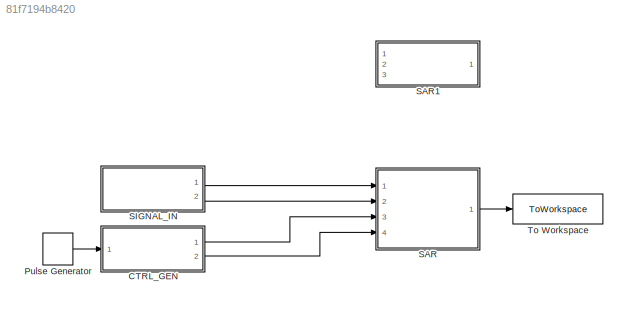
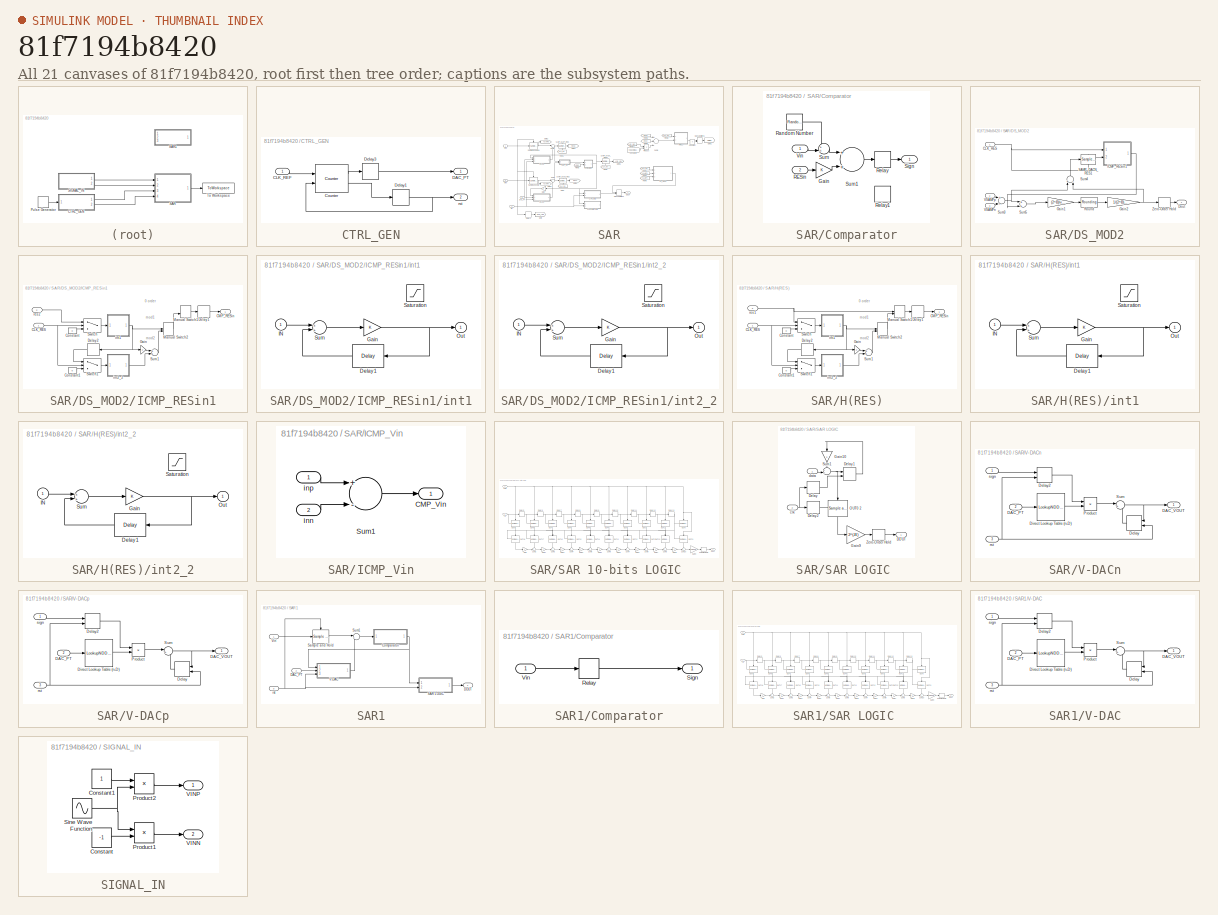
[diagram: thumbnail index - all 21 canvases of the model, root first then tree order]
MODEL slx_81f7194b8420
KIND model
CONFIG AbsTol = auto
CONFIG EnableMultiTasking = off
CONFIG FixedStep = auto
CONFIG MaxStep = auto
CONFIG MinStep = auto
CONFIG RelTol = 1e-3
CONFIG SampleTimeConstraint = Unconstrained
CONFIG Solver = VariableStepAuto
CONFIG SolverName = VariableStepAuto
CONFIG StartTime = 0.0
CONFIG StopTime = 1e-6
BLOCK [SubSystem] CTRL_GEN
  Ports = [1, 2]
  RequestExecContextInheritance = off
BLOCK [Inport] CTRL_GEN/CLK_REF
  IconDisplay = Port number
BLOCK [Reference] CTRL_GEN/Counter  REF=dspswit3/Counter
  Ports = [2, 2]
  SourceBlock = dspswit3/Counter
  SourceProductBaseCode = DS
  SourceProductName = DSP System Toolbox
  SourceType = Counter
BLOCK [Outport] CTRL_GEN/DAC_PT
  IconDisplay = Port number
BLOCK [Delay] CTRL_GEN/Delay1
  DelayLength = 1
  InitialCondition = 0
  InputPortMap = u0
  Ports = [1, 1]
  SampleTime = Tclk
BLOCK [Delay] CTRL_GEN/Delay3
  DelayLength = 1
  InitialCondition = 0
  InputPortMap = u0
  Ports = [1, 1]
  SampleTime = Tclk
BLOCK [Outport] CTRL_GEN/rst
  IconDisplay = Port number
  Port = 2
BLOCK [DiscretePulseGenerator] Pulse Generator
  Amplitude = vfs
  Period = Tclk
  PhaseDelay = Tclk/2
  Ports = [0, 1]
  PulseType = Time based
  PulseWidth = 50
BLOCK [SubSystem] SAR
  Ports = [4, 1]
  RequestExecContextInheritance = off
BLOCK [SubSystem] SAR/Comparator
  Ports = [2, 1]
  RequestExecContextInheritance = off
BLOCK [Gain] SAR/Comparator/Gain
  OutDataTypeStr = Inherit: Inherit via internal rule
  ParamDataTypeStr = Inherit: Inherit via internal rule
  SaturateOnIntegerOverflow = off
BLOCK [Inport] SAR/Comparator/RESin
  IconDisplay = Port number
  Port = 2
BLOCK [RandomNumber] SAR/Comparator/Random Number
  Commented = on
  Mean = cmp_Voff
  SampleTime = 0.1
  Seed = cmp_randn_seed
  Variance = cmp_Var
BLOCK [Relay] SAR/Comparator/Relay
  OffOutputValue = -1
BLOCK [Relay] SAR/Comparator/Relay1
  Commented = on
  OffOutputValue = -1
BLOCK [Outport] SAR/Comparator/Sign
  IconDisplay = Port number
BLOCK [Sum] SAR/Comparator/Sum
  IconShape = round
  InputSameDT = off
  Inputs = ++|
  OutDataTypeStr = Inherit: Inherit via internal rule
  Ports = [2, 1]
  SaturateOnIntegerOverflow = off
BLOCK [Sum] SAR/Comparator/Sum1
  InputSameDT = off
  OutDataTypeStr = Inherit: Inherit via internal rule
  Ports = [2, 1]
  SaturateOnIntegerOverflow = off
BLOCK [Inport] SAR/Comparator/Vin
  IconDisplay = Port number
BLOCK [Constant] SAR/Constant
  Value = 0
BLOCK [Constant] SAR/Constant2
  Value = vdacp(B-1)/2*2
BLOCK [Inport] SAR/DAC_PT
  IconDisplay = Port number
  Port = 3
BLOCK [Outport] SAR/DOUT
  IconDisplay = Port number
BLOCK [SubSystem] SAR/DS_MOD2
  Commented = on
  Ports = [3, 1]
  RequestExecContextInheritance = off
BLOCK [Inport] SAR/DS_MOD2/CLK_RES
  IconDisplay = Port number
BLOCK [Outport] SAR/DS_MOD2/Dout
  IconDisplay = Port number
BLOCK [Gain] SAR/DS_MOD2/Gain1
  Gain = (2^B)/vfs/2
  OutDataTypeStr = Inherit: Inherit via internal rule
  ParamDataTypeStr = Inherit: Inherit via internal rule
  SaturateOnIntegerOverflow = off
BLOCK [Gain] SAR/DS_MOD2/Gain2
  Gain = 1/(2^B)*vfs*2
  OutDataTypeStr = Inherit: Inherit via internal rule
  ParamDataTypeStr = Inherit: Inherit via internal rule
  SaturateOnIntegerOverflow = off
BLOCK [SubSystem] SAR/DS_MOD2/ICMP_RESin1
  Ports = [2, 1]
  RequestExecContextInheritance = off
BLOCK [Inport] SAR/DS_MOD2/ICMP_RESin1/CLK_RES
  IconDisplay = Port number
BLOCK [Outport] SAR/DS_MOD2/ICMP_RESin1/CMP_RESin
  IconDisplay = Port number
BLOCK [Constant] SAR/DS_MOD2/ICMP_RESin1/Constant
  Value = 0
BLOCK [Constant] SAR/DS_MOD2/ICMP_RESin1/Constant1
  Value = 0
BLOCK [Delay] SAR/DS_MOD2/ICMP_RESin1/Delay1
  DelayLength = 1
  InputPortMap = u0
  Ports = [1, 1]
BLOCK [Delay] SAR/DS_MOD2/ICMP_RESin1/Delay2
  DelayLength = 1
  InputPortMap = u0
  Ports = [1, 1]
BLOCK [Gain] SAR/DS_MOD2/ICMP_RESin1/Gain
  Gain = 2
  OutDataTypeStr = Inherit: Inherit via internal rule
  ParamDataTypeStr = Inherit: Inherit via internal rule
  SaturateOnIntegerOverflow = off
BLOCK [ManualSwitch] SAR/DS_MOD2/ICMP_RESin1/Manual Switch1
  CurrentSetting = 0
BLOCK [ManualSwitch] SAR/DS_MOD2/ICMP_RESin1/Manual Switch2
  CurrentSetting = 0
BLOCK [Sum] SAR/DS_MOD2/ICMP_RESin1/Sum1
  InputSameDT = off
  OutDataTypeStr = Inherit: Inherit via internal rule
  Ports = [2, 1]
  SaturateOnIntegerOverflow = off
BLOCK [Switch] SAR/DS_MOD2/ICMP_RESin1/Switch
  Criteria = u2 > Threshold
  InputSameDT = off
  SaturateOnIntegerOverflow = off
BLOCK [Switch] SAR/DS_MOD2/ICMP_RESin1/Switch1
  Criteria = u2 > Threshold
  InputSameDT = off
  SaturateOnIntegerOverflow = off
BLOCK [SubSystem] SAR/DS_MOD2/ICMP_RESin1/int1
  Ports = [1, 1]
  RequestExecContextInheritance = off
BLOCK [Delay] SAR/DS_MOD2/ICMP_RESin1/int1/Delay1
  DelayLength = 1
  InitialCondition = 0
  InputPortMap = u0
  Ports = [1, 1]
  UserDataPersistent = on
BLOCK [Gain] SAR/DS_MOD2/ICMP_RESin1/int1/Gain
  OutDataTypeStr = Inherit: Inherit via internal rule
  ParamDataTypeStr = Inherit: Inherit via internal rule
  SaturateOnIntegerOverflow = off
BLOCK [Inport] SAR/DS_MOD2/ICMP_RESin1/int1/IN
  IconDisplay = Port number
BLOCK [Outport] SAR/DS_MOD2/ICMP_RESin1/int1/Out
  IconDisplay = Port number
  VectorParamsAs1DForOutWhenUnconnected = off
BLOCK [Saturate] SAR/DS_MOD2/ICMP_RESin1/int1/Saturation
  Commented = on
  InputPortMap = u0
  LowerLimit = -1*Amax
  Ports = [1, 1]
  UpperLimit = Amax
BLOCK [Sum] SAR/DS_MOD2/ICMP_RESin1/int1/Sum
  Ports = [2, 1]
BLOCK [SubSystem] SAR/DS_MOD2/ICMP_RESin1/int2_2
  Ports = [1, 1]
  RequestExecContextInheritance = off
BLOCK [Delay] SAR/DS_MOD2/ICMP_RESin1/int2_2/Delay1
  DelayLength = 1
  InitialCondition = 0
  InputPortMap = u0
  Ports = [1, 1]
  UserDataPersistent = on
BLOCK [Gain] SAR/DS_MOD2/ICMP_RESin1/int2_2/Gain
  OutDataTypeStr = Inherit: Inherit via internal rule
  ParamDataTypeStr = Inherit: Inherit via internal rule
  SaturateOnIntegerOverflow = off
BLOCK [Inport] SAR/DS_MOD2/ICMP_RESin1/int2_2/IN
  IconDisplay = Port number
BLOCK [Outport] SAR/DS_MOD2/ICMP_RESin1/int2_2/Out
  IconDisplay = Port number
  VectorParamsAs1DForOutWhenUnconnected = off
BLOCK [Saturate] SAR/DS_MOD2/ICMP_RESin1/int2_2/Saturation
  Commented = on
  InputPortMap = u0
  LowerLimit = -1*Amax
  Ports = [1, 1]
  UpperLimit = Amax
BLOCK [Sum] SAR/DS_MOD2/ICMP_RESin1/int2_2/Sum
  Ports = [2, 1]
BLOCK [Inport] SAR/DS_MOD2/ICMP_RESin1/res2
  IconDisplay = Port number
  Port = 2
BLOCK [Rounding] SAR/DS_MOD2/Round
  Operator = round
BLOCK [Reference] SAR/DS_MOD2/SAMP_DACN_RES1  REF=dspsigops/Sample
and Hold
  Ports = [1, 1, 0, 1]
  SourceBlock = dspsigops/Sample\nand Hold
  SourceProductBaseCode = DS
  SourceProductName = DSP System Toolbox
  SourceType = Sample and Hold
BLOCK [Sum] SAR/DS_MOD2/Sum3
  InputSameDT = off
  Inputs = +-
  OutDataTypeStr = Inherit: Inherit via internal rule
  Ports = [2, 1]
  SaturateOnIntegerOverflow = off
BLOCK [Sum] SAR/DS_MOD2/Sum4
  InputSameDT = off
  Inputs = +-
  OutDataTypeStr = Inherit: Inherit via internal rule
  Ports = [2, 1]
  SaturateOnIntegerOverflow = off
BLOCK [Sum] SAR/DS_MOD2/Sum5
  InputSameDT = off
  OutDataTypeStr = Inherit: Inherit via internal rule
  Ports = [2, 1]
  SaturateOnIntegerOverflow = off
BLOCK [Inport] SAR/DS_MOD2/VSAMPn
  IconDisplay = Port number
  Port = 3
BLOCK [Inport] SAR/DS_MOD2/VSAMPp
  IconDisplay = Port number
  Port = 2
BLOCK [ZeroOrderHold] SAR/DS_MOD2/Zero-Order Hold
  SampleTime = Tnyq
BLOCK [Delay] SAR/Delay2
  DelayLength = B-1
  InputPortMap = u0
  Ports = [1, 1]
BLOCK [From] SAR/From
  GotoTag = CLK_res
BLOCK [From] SAR/From1
  GotoTag = CLK_res
BLOCK [From] SAR/From10
  GotoTag = LSB_sign
BLOCK [From] SAR/From2
  GotoTag = CLK_res
BLOCK [From] SAR/From3
  GotoTag = VRES
BLOCK [From] SAR/From4
  GotoTag = VSAMPp
BLOCK [From] SAR/From5
  GotoTag = CLK_res
BLOCK [From] SAR/From6
  GotoTag = VSAMPn
BLOCK [From] SAR/From7
  GotoTag = CLK_res
BLOCK [From] SAR/From8
  GotoTag = RESp
BLOCK [From] SAR/From9
  GotoTag = RESn
BLOCK [Gain] SAR/Gain
  Gain = -1
  OutDataTypeStr = Inherit: Inherit via internal rule
  ParamDataTypeStr = Inherit: Inherit via internal rule
  SaturateOnIntegerOverflow = off
BLOCK [Goto] SAR/Goto
  GotoTag = CLK_res
BLOCK [Goto] SAR/Goto1
  GotoTag = VRES
BLOCK [Goto] SAR/Goto2
  GotoTag = VSAMPp
BLOCK [Goto] SAR/Goto3
  GotoTag = VSAMPn
BLOCK [Goto] SAR/Goto4
  GotoTag = RESp
BLOCK [Goto] SAR/Goto5
  GotoTag = RESn
BLOCK [Goto] SAR/Goto6
  GotoTag = LSB_sign
BLOCK [SubSystem] SAR/H(RES)
  Ports = [2, 1]
  RequestExecContextInheritance = off
BLOCK [Inport] SAR/H(RES)/CLK_RES
  IconDisplay = Port number
BLOCK [Outport] SAR/H(RES)/CMP_RESin
  IconDisplay = Port number
BLOCK [Constant] SAR/H(RES)/Constant
  Value = 0
BLOCK [Constant] SAR/H(RES)/Constant1
  Value = 0
BLOCK [Delay] SAR/H(RES)/Delay1
  DelayLength = 1
  InputPortMap = u0
  Ports = [1, 1]
BLOCK [Delay] SAR/H(RES)/Delay2
  DelayLength = 1
  InputPortMap = u0
  Ports = [1, 1]
BLOCK [Gain] SAR/H(RES)/Gain
  Gain = 2
  OutDataTypeStr = Inherit: Inherit via internal rule
  ParamDataTypeStr = Inherit: Inherit via internal rule
  SaturateOnIntegerOverflow = off
BLOCK [ManualSwitch] SAR/H(RES)/Manual Switch1
  CurrentSetting = 0
BLOCK [ManualSwitch] SAR/H(RES)/Manual Switch2
  CurrentSetting = 0
BLOCK [Sum] SAR/H(RES)/Sum1
  InputSameDT = off
  OutDataTypeStr = Inherit: Inherit via internal rule
  Ports = [2, 1]
  SaturateOnIntegerOverflow = off
BLOCK [Switch] SAR/H(RES)/Switch
  Criteria = u2 > Threshold
  InputSameDT = off
  SaturateOnIntegerOverflow = off
BLOCK [Switch] SAR/H(RES)/Switch1
  Criteria = u2 > Threshold
  InputSameDT = off
  SaturateOnIntegerOverflow = off
BLOCK [SubSystem] SAR/H(RES)/int1
  Ports = [1, 1]
  RequestExecContextInheritance = off
BLOCK [Delay] SAR/H(RES)/int1/Delay1
  DelayLength = 1
  InitialCondition = 0
  InputPortMap = u0
  Ports = [1, 1]
  UserDataPersistent = on
BLOCK [Gain] SAR/H(RES)/int1/Gain
  OutDataTypeStr = Inherit: Inherit via internal rule
  ParamDataTypeStr = Inherit: Inherit via internal rule
  SaturateOnIntegerOverflow = off
BLOCK [Inport] SAR/H(RES)/int1/IN
  IconDisplay = Port number
BLOCK [Outport] SAR/H(RES)/int1/Out
  IconDisplay = Port number
  VectorParamsAs1DForOutWhenUnconnected = off
BLOCK [Saturate] SAR/H(RES)/int1/Saturation
  Commented = on
  InputPortMap = u0
  LowerLimit = -1*Amax
  Ports = [1, 1]
  UpperLimit = Amax
BLOCK [Sum] SAR/H(RES)/int1/Sum
  Ports = [2, 1]
BLOCK [SubSystem] SAR/H(RES)/int2_2
  Ports = [1, 1]
  RequestExecContextInheritance = off
BLOCK [Delay] SAR/H(RES)/int2_2/Delay1
  DelayLength = 1
  InitialCondition = 0
  InputPortMap = u0
  Ports = [1, 1]
  UserDataPersistent = on
BLOCK [Gain] SAR/H(RES)/int2_2/Gain
  OutDataTypeStr = Inherit: Inherit via internal rule
  ParamDataTypeStr = Inherit: Inherit via internal rule
  SaturateOnIntegerOverflow = off
BLOCK [Inport] SAR/H(RES)/int2_2/IN
  IconDisplay = Port number
BLOCK [Outport] SAR/H(RES)/int2_2/Out
  IconDisplay = Port number
  VectorParamsAs1DForOutWhenUnconnected = off
BLOCK [Saturate] SAR/H(RES)/int2_2/Saturation
  Commented = on
  InputPortMap = u0
  LowerLimit = -1*Amax
  Ports = [1, 1]
  UpperLimit = Amax
BLOCK [Sum] SAR/H(RES)/int2_2/Sum
  Ports = [2, 1]
BLOCK [Inport] SAR/H(RES)/res1
  IconDisplay = Port number
  Port = 2
BLOCK [SubSystem] SAR/ICMP_Vin
  Ports = [2, 1]
  RequestExecContextInheritance = off
BLOCK [Outport] SAR/ICMP_Vin/CMP_Vin
  IconDisplay = Port number
BLOCK [Sum] SAR/ICMP_Vin/Sum1
  InputSameDT = off
  Inputs = +-
  OutDataTypeStr = Inherit: Inherit via internal rule
  Ports = [2, 1]
  SaturateOnIntegerOverflow = off
BLOCK [Inport] SAR/ICMP_Vin/inn
  IconDisplay = Port number
  Port = 2
BLOCK [Inport] SAR/ICMP_Vin/inp
  IconDisplay = Port number
BLOCK [ManualSwitch] SAR/Manual Switch1
BLOCK [ManualSwitch] SAR/Manual Switch2
  CurrentSetting = 0
BLOCK [Product] SAR/Product
  InputSameDT = off
  OutDataTypeStr = Inherit: Inherit via internal rule
  Ports = [2, 1]
  RndMeth = Floor
  SaturateOnIntegerOverflow = off
BLOCK [Reference] SAR/SAMP_DACN_RES  REF=dspsigops/Sample
and Hold
  Ports = [1, 1, 0, 1]
  SourceBlock = dspsigops/Sample\nand Hold
  SourceProductBaseCode = DS
  SourceProductName = DSP System Toolbox
  SourceType = Sample and Hold
BLOCK [Reference] SAR/SAMP_DACN_RES2  REF=dspsigops/Sample
and Hold
  Ports = [1, 1, 0, 1]
  SourceBlock = dspsigops/Sample\nand Hold
  SourceProductBaseCode = DS
  SourceProductName = DSP System Toolbox
  SourceType = Sample and Hold
BLOCK [Reference] SAR/SAMP_DACP_RES  REF=dspsigops/Sample
and Hold
  Ports = [1, 1, 0, 1]
  SourceBlock = dspsigops/Sample\nand Hold
  SourceProductBaseCode = DS
  SourceProductName = DSP System Toolbox
  SourceType = Sample and Hold
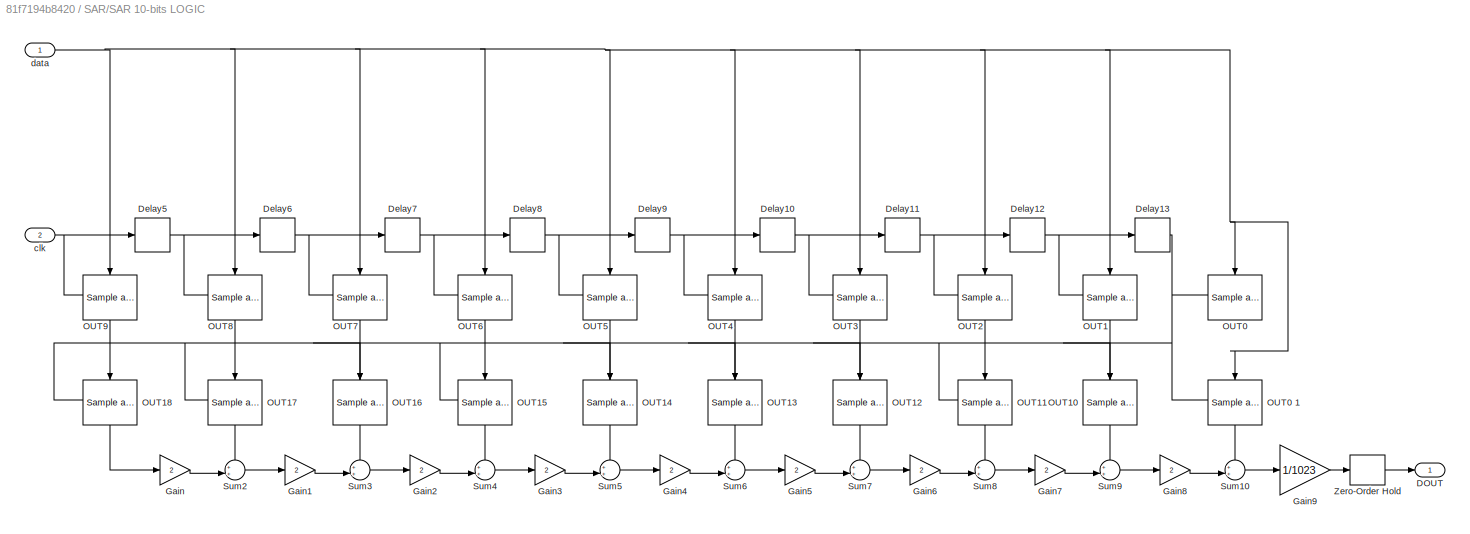
BLOCK [SubSystem] SAR/SAR 10-bits LOGIC 
  Commented = on
  Ports = [2, 1]
  RequestExecContextInheritance = off
BLOCK [Outport] SAR/SAR 10-bits LOGIC /DOUT
  IconDisplay = Port number
BLOCK [Delay] SAR/SAR 10-bits LOGIC /Delay10
  DelayLength = 1
  InitialCondition = 0
  InputPortMap = u0
  Ports = [1, 1]
  SampleTime = Tclk
BLOCK [Delay] SAR/SAR 10-bits LOGIC /Delay11
  DelayLength = 1
  InitialCondition = 0
  InputPortMap = u0
  Ports = [1, 1]
  SampleTime = Tclk
BLOCK [Delay] SAR/SAR 10-bits LOGIC /Delay12
  DelayLength = 1
  InitialCondition = 0
  InputPortMap = u0
  Ports = [1, 1]
  SampleTime = Tclk
BLOCK [Delay] SAR/SAR 10-bits LOGIC /Delay13
  DelayLength = 1
  InitialCondition = 0
  InputPortMap = u0
  Ports = [1, 1]
  SampleTime = Tclk
BLOCK [Delay] SAR/SAR 10-bits LOGIC /Delay5
  DelayLength = 1
  InitialCondition = 0
  InputPortMap = u0
  Ports = [1, 1]
  SampleTime = Tclk
BLOCK [Delay] SAR/SAR 10-bits LOGIC /Delay6
  DelayLength = 1
  InitialCondition = 0
  InputPortMap = u0
  Ports = [1, 1]
  SampleTime = Tclk
BLOCK [Delay] SAR/SAR 10-bits LOGIC /Delay7
  DelayLength = 1
  InitialCondition = 0
  InputPortMap = u0
  Ports = [1, 1]
  SampleTime = Tclk
BLOCK [Delay] SAR/SAR 10-bits LOGIC /Delay8
  DelayLength = 1
  InitialCondition = 0
  InputPortMap = u0
  Ports = [1, 1]
  SampleTime = Tclk
BLOCK [Delay] SAR/SAR 10-bits LOGIC /Delay9
  DelayLength = 1
  InitialCondition = 0
  InputPortMap = u0
  Ports = [1, 1]
  SampleTime = Tclk
BLOCK [Gain] SAR/SAR 10-bits LOGIC /Gain
  Gain = 2
  OutDataTypeStr = Inherit: Inherit via internal rule
  ParamDataTypeStr = Inherit: Inherit via internal rule
  SaturateOnIntegerOverflow = off
BLOCK [Gain] SAR/SAR 10-bits LOGIC /Gain1
  Gain = 2
  OutDataTypeStr = Inherit: Inherit via internal rule
  ParamDataTypeStr = Inherit: Inherit via internal rule
  SaturateOnIntegerOverflow = off
BLOCK [Gain] SAR/SAR 10-bits LOGIC /Gain2
  Gain = 2
  OutDataTypeStr = Inherit: Inherit via internal rule
  ParamDataTypeStr = Inherit: Inherit via internal rule
  SaturateOnIntegerOverflow = off
BLOCK [Gain] SAR/SAR 10-bits LOGIC /Gain3
  Gain = 2
  OutDataTypeStr = Inherit: Inherit via internal rule
  ParamDataTypeStr = Inherit: Inherit via internal rule
  SaturateOnIntegerOverflow = off
BLOCK [Gain] SAR/SAR 10-bits LOGIC /Gain4
  Gain = 2
  OutDataTypeStr = Inherit: Inherit via internal rule
  ParamDataTypeStr = Inherit: Inherit via internal rule
  SaturateOnIntegerOverflow = off
BLOCK [Gain] SAR/SAR 10-bits LOGIC /Gain5
  Gain = 2
  OutDataTypeStr = Inherit: Inherit via internal rule
  ParamDataTypeStr = Inherit: Inherit via internal rule
  SaturateOnIntegerOverflow = off
BLOCK [Gain] SAR/SAR 10-bits LOGIC /Gain6
  Gain = 2
  OutDataTypeStr = Inherit: Inherit via internal rule
  ParamDataTypeStr = Inherit: Inherit via internal rule
  SaturateOnIntegerOverflow = off
BLOCK [Gain] SAR/SAR 10-bits LOGIC /Gain7
  Gain = 2
  OutDataTypeStr = Inherit: Inherit via internal rule
  ParamDataTypeStr = Inherit: Inherit via internal rule
  SaturateOnIntegerOverflow = off
BLOCK [Gain] SAR/SAR 10-bits LOGIC /Gain8
  Gain = 2
  OutDataTypeStr = Inherit: Inherit via internal rule
  ParamDataTypeStr = Inherit: Inherit via internal rule
  SaturateOnIntegerOverflow = off
BLOCK [Gain] SAR/SAR 10-bits LOGIC /Gain9
  Gain = 1/1023
  OutDataTypeStr = Inherit: Inherit via internal rule
  ParamDataTypeStr = Inherit: Inherit via internal rule
  SaturateOnIntegerOverflow = off
BLOCK [Reference] SAR/SAR 10-bits LOGIC /OUT0   REF=dspsigops/Sample
and Hold
  Ports = [1, 1, 0, 1]
  SourceBlock = dspsigops/Sample\nand Hold
  SourceProductBaseCode = DS
  SourceProductName = DSP System Toolbox
  SourceType = Sample and Hold
BLOCK [Reference] SAR/SAR 10-bits LOGIC /OUT0 1  REF=dspsigops/Sample
and Hold
  Ports = [1, 1, 0, 1]
  SourceBlock = dspsigops/Sample\nand Hold
  SourceProductBaseCode = DS
  SourceProductName = DSP System Toolbox
  SourceType = Sample and Hold
BLOCK [Reference] SAR/SAR 10-bits LOGIC /OUT1  REF=dspsigops/Sample
and Hold
  Ports = [1, 1, 0, 1]
  SourceBlock = dspsigops/Sample\nand Hold
  SourceProductBaseCode = DS
  SourceProductName = DSP System Toolbox
  SourceType = Sample and Hold
BLOCK [Reference] SAR/SAR 10-bits LOGIC /OUT10  REF=dspsigops/Sample
and Hold
  Ports = [1, 1, 0, 1]
  SourceBlock = dspsigops/Sample\nand Hold
  SourceProductBaseCode = DS
  SourceProductName = DSP System Toolbox
  SourceType = Sample and Hold
BLOCK [Reference] SAR/SAR 10-bits LOGIC /OUT11  REF=dspsigops/Sample
and Hold
  Ports = [1, 1, 0, 1]
  SourceBlock = dspsigops/Sample\nand Hold
  SourceProductBaseCode = DS
  SourceProductName = DSP System Toolbox
  SourceType = Sample and Hold
BLOCK [Reference] SAR/SAR 10-bits LOGIC /OUT12  REF=dspsigops/Sample
and Hold
  Ports = [1, 1, 0, 1]
  SourceBlock = dspsigops/Sample\nand Hold
  SourceProductBaseCode = DS
  SourceProductName = DSP System Toolbox
  SourceType = Sample and Hold
BLOCK [Reference] SAR/SAR 10-bits LOGIC /OUT13  REF=dspsigops/Sample
and Hold
  Ports = [1, 1, 0, 1]
  SourceBlock = dspsigops/Sample\nand Hold
  SourceProductBaseCode = DS
  SourceProductName = DSP System Toolbox
  SourceType = Sample and Hold
BLOCK [Reference] SAR/SAR 10-bits LOGIC /OUT14  REF=dspsigops/Sample
and Hold
  Ports = [1, 1, 0, 1]
  SourceBlock = dspsigops/Sample\nand Hold
  SourceProductBaseCode = DS
  SourceProductName = DSP System Toolbox
  SourceType = Sample and Hold
BLOCK [Reference] SAR/SAR 10-bits LOGIC /OUT15  REF=dspsigops/Sample
and Hold
  Ports = [1, 1, 0, 1]
  SourceBlock = dspsigops/Sample\nand Hold
  SourceProductBaseCode = DS
  SourceProductName = DSP System Toolbox
  SourceType = Sample and Hold
BLOCK [Reference] SAR/SAR 10-bits LOGIC /OUT16  REF=dspsigops/Sample
and Hold
  Ports = [1, 1, 0, 1]
  SourceBlock = dspsigops/Sample\nand Hold
  SourceProductBaseCode = DS
  SourceProductName = DSP System Toolbox
  SourceType = Sample and Hold
BLOCK [Reference] SAR/SAR 10-bits LOGIC /OUT17  REF=dspsigops/Sample
and Hold
  Ports = [1, 1, 0, 1]
  SourceBlock = dspsigops/Sample\nand Hold
  SourceProductBaseCode = DS
  SourceProductName = DSP System Toolbox
  SourceType = Sample and Hold
BLOCK [Reference] SAR/SAR 10-bits LOGIC /OUT18  REF=dspsigops/Sample
and Hold
  Ports = [1, 1, 0, 1]
  SourceBlock = dspsigops/Sample\nand Hold
  SourceProductBaseCode = DS
  SourceProductName = DSP System Toolbox
  SourceType = Sample and Hold
BLOCK [Reference] SAR/SAR 10-bits LOGIC /OUT2  REF=dspsigops/Sample
and Hold
  Ports = [1, 1, 0, 1]
  SourceBlock = dspsigops/Sample\nand Hold
  SourceProductBaseCode = DS
  SourceProductName = DSP System Toolbox
  SourceType = Sample and Hold
BLOCK [Reference] SAR/SAR 10-bits LOGIC /OUT3  REF=dspsigops/Sample
and Hold
  Ports = [1, 1, 0, 1]
  SourceBlock = dspsigops/Sample\nand Hold
  SourceProductBaseCode = DS
  SourceProductName = DSP System Toolbox
  SourceType = Sample and Hold
BLOCK [Reference] SAR/SAR 10-bits LOGIC /OUT4  REF=dspsigops/Sample
and Hold
  Ports = [1, 1, 0, 1]
  SourceBlock = dspsigops/Sample\nand Hold
  SourceProductBaseCode = DS
  SourceProductName = DSP System Toolbox
  SourceType = Sample and Hold
BLOCK [Reference] SAR/SAR 10-bits LOGIC /OUT5  REF=dspsigops/Sample
and Hold
  Ports = [1, 1, 0, 1]
  SourceBlock = dspsigops/Sample\nand Hold
  SourceProductBaseCode = DS
  SourceProductName = DSP System Toolbox
  SourceType = Sample and Hold
BLOCK [Reference] SAR/SAR 10-bits LOGIC /OUT6  REF=dspsigops/Sample
and Hold
  Ports = [1, 1, 0, 1]
  SourceBlock = dspsigops/Sample\nand Hold
  SourceProductBaseCode = DS
  SourceProductName = DSP System Toolbox
  SourceType = Sample and Hold
BLOCK [Reference] SAR/SAR 10-bits LOGIC /OUT7  REF=dspsigops/Sample
and Hold
  Ports = [1, 1, 0, 1]
  SourceBlock = dspsigops/Sample\nand Hold
  SourceProductBaseCode = DS
  SourceProductName = DSP System Toolbox
  SourceType = Sample and Hold
BLOCK [Reference] SAR/SAR 10-bits LOGIC /OUT8  REF=dspsigops/Sample
and Hold
  Ports = [1, 1, 0, 1]
  SourceBlock = dspsigops/Sample\nand Hold
  SourceProductBaseCode = DS
  SourceProductName = DSP System Toolbox
  SourceType = Sample and Hold
BLOCK [Reference] SAR/SAR 10-bits LOGIC /OUT9  REF=dspsigops/Sample
and Hold
  Ports = [1, 1, 0, 1]
  SourceBlock = dspsigops/Sample\nand Hold
  SourceProductBaseCode = DS
  SourceProductName = DSP System Toolbox
  SourceType = Sample and Hold
BLOCK [Sum] SAR/SAR 10-bits LOGIC /Sum10
  IconShape = round
  InputSameDT = off
  Inputs = ++|
  OutDataTypeStr = Inherit: Inherit via internal rule
  Ports = [2, 1]
  SaturateOnIntegerOverflow = off
BLOCK [Sum] SAR/SAR 10-bits LOGIC /Sum2
  IconShape = round
  InputSameDT = off
  Inputs = ++|
  OutDataTypeStr = Inherit: Inherit via internal rule
  Ports = [2, 1]
  SaturateOnIntegerOverflow = off
BLOCK [Sum] SAR/SAR 10-bits LOGIC /Sum3
  IconShape = round
  InputSameDT = off
  Inputs = ++|
  OutDataTypeStr = Inherit: Inherit via internal rule
  Ports = [2, 1]
  SaturateOnIntegerOverflow = off
BLOCK [Sum] SAR/SAR 10-bits LOGIC /Sum4
  IconShape = round
  InputSameDT = off
  Inputs = ++|
  OutDataTypeStr = Inherit: Inherit via internal rule
  Ports = [2, 1]
  SaturateOnIntegerOverflow = off
BLOCK [Sum] SAR/SAR 10-bits LOGIC /Sum5
  IconShape = round
  InputSameDT = off
  Inputs = ++|
  OutDataTypeStr = Inherit: Inherit via internal rule
  Ports = [2, 1]
  SaturateOnIntegerOverflow = off
BLOCK [Sum] SAR/SAR 10-bits LOGIC /Sum6
  IconShape = round
  InputSameDT = off
  Inputs = ++|
  OutDataTypeStr = Inherit: Inherit via internal rule
  Ports = [2, 1]
  SaturateOnIntegerOverflow = off
BLOCK [Sum] SAR/SAR 10-bits LOGIC /Sum7
  IconShape = round
  InputSameDT = off
  Inputs = ++|
  OutDataTypeStr = Inherit: Inherit via internal rule
  Ports = [2, 1]
  SaturateOnIntegerOverflow = off
BLOCK [Sum] SAR/SAR 10-bits LOGIC /Sum8
  IconShape = round
  InputSameDT = off
  Inputs = ++|
  OutDataTypeStr = Inherit: Inherit via internal rule
  Ports = [2, 1]
  SaturateOnIntegerOverflow = off
BLOCK [Sum] SAR/SAR 10-bits LOGIC /Sum9
  IconShape = round
  InputSameDT = off
  Inputs = ++|
  OutDataTypeStr = Inherit: Inherit via internal rule
  Ports = [2, 1]
  SaturateOnIntegerOverflow = off
BLOCK [ZeroOrderHold] SAR/SAR 10-bits LOGIC /Zero-Order Hold
  SampleTime = Tnyq
BLOCK [Inport] SAR/SAR 10-bits LOGIC /clk
  IconDisplay = Port number
  Port = 2
BLOCK [Inport] SAR/SAR 10-bits LOGIC /data
  IconDisplay = Port number
BLOCK [SubSystem] SAR/SAR LOGIC 
  Ports = [2, 1]
  RequestExecContextInheritance = off
BLOCK [Outport] SAR/SAR LOGIC /DOUT
  IconDisplay = Port number
BLOCK [Delay] SAR/SAR LOGIC /Delay
  DelayLength = B
  InputPortMap = u0
  Ports = [1, 1]
BLOCK [Delay] SAR/SAR LOGIC /Delay1
  DelayLength = 1
  ExternalReset = Rising
  InitialCondition = 0
  InputPortMap = u0,r5
  Ports = [2, 1]
  SampleTime = Tclk
BLOCK [Delay] SAR/SAR LOGIC /Delay2
  DelayLength = B-1
  InputPortMap = u0
  Ports = [1, 1]
BLOCK [Gain] SAR/SAR LOGIC /Gain10
  Gain = 2
  OutDataTypeStr = Inherit: Inherit via internal rule
  ParamDataTypeStr = Inherit: Inherit via internal rule
  SaturateOnIntegerOverflow = off
BLOCK [Gain] SAR/SAR LOGIC /Gain9
  Gain = 2^(-B)
  OutDataTypeStr = Inherit: Inherit via internal rule
  ParamDataTypeStr = Inherit: Inherit via internal rule
  SaturateOnIntegerOverflow = off
BLOCK [Reference] SAR/SAR LOGIC /OUT0 2  REF=dspsigops/Sample
and Hold
  Ports = [1, 1, 0, 1]
  SourceBlock = dspsigops/Sample\nand Hold
  SourceProductBaseCode = DS
  SourceProductName = DSP System Toolbox
  SourceType = Sample and Hold
BLOCK [Sum] SAR/SAR LOGIC /Sum1
  IconShape = round
  InputSameDT = off
  Inputs = ++|
  OutDataTypeStr = Inherit: Inherit via internal rule
  Ports = [2, 1]
  SaturateOnIntegerOverflow = off
BLOCK [ZeroOrderHold] SAR/SAR LOGIC /Zero-Order Hold
  SampleTime = Tnyq
BLOCK [Inport] SAR/SAR LOGIC /clk
  IconDisplay = Port number
  Port = 2
BLOCK [Inport] SAR/SAR LOGIC /data
  IconDisplay = Port number
BLOCK [Reference] SAR/Sample and Hold  REF=dspsigops/Sample
and Hold
  Ports = [1, 1, 0, 1]
  SourceBlock = dspsigops/Sample\nand Hold
  SourceProductBaseCode = DS
  SourceProductName = DSP System Toolbox
  SourceType = Sample and Hold
BLOCK [Reference] SAR/Sample and Hold1  REF=dspsigops/Sample
and Hold
  Ports = [1, 1, 0, 1]
  SourceBlock = dspsigops/Sample\nand Hold
  SourceProductBaseCode = DS
  SourceProductName = DSP System Toolbox
  SourceType = Sample and Hold
BLOCK [Sum] SAR/Sum1
  IconShape = round
  InputSameDT = off
  Inputs = |+-
  OutDataTypeStr = Inherit: Inherit via internal rule
  Ports = [2, 1]
  SaturateOnIntegerOverflow = off
BLOCK [Sum] SAR/Sum2
  IconShape = round
  InputSameDT = off
  Inputs = |+-
  OutDataTypeStr = Inherit: Inherit via internal rule
  Ports = [2, 1]
  SaturateOnIntegerOverflow = off
BLOCK [Sum] SAR/Sum6
  InputSameDT = off
  Inputs = +--
  OutDataTypeStr = Inherit: Inherit via internal rule
  Ports = [3, 1]
  SaturateOnIntegerOverflow = off
BLOCK [SubSystem] SAR/V-DACn
  Ports = [3, 1]
  RequestExecContextInheritance = off
BLOCK [Inport] SAR/V-DACn/DAC_PT
  IconDisplay = Port number
  Port = 2
BLOCK [Outport] SAR/V-DACn/DAC_VOUT
  IconDisplay = Port number
BLOCK [Delay] SAR/V-DACn/Delay
  DelayLength = 1
  ExternalReset = Rising
  InitialCondition = 0
  InputPortMap = u0,r5
  Ports = [2, 1]
  SampleTime = Tclk
BLOCK [Delay] SAR/V-DACn/Delay2
  DelayLength = 1
  ExternalReset = Rising
  InitialCondition = 0
  InputPortMap = u0,r5
  Ports = [2, 1]
  SampleTime = Tclk
BLOCK [LookupNDDirect] SAR/V-DACn/Direct Lookup Table (n-D)
  NumberOfTableDimensions = 1
  Ports = [1, 1]
  Table = vdacn
BLOCK [Product] SAR/V-DACn/Product
  InputSameDT = off
  OutDataTypeStr = Inherit: Inherit via internal rule
  Ports = [2, 1]
  RndMeth = Floor
  SaturateOnIntegerOverflow = off
BLOCK [Sum] SAR/V-DACn/Sum
  IconShape = round
  InputSameDT = off
  Inputs = |++
  OutDataTypeStr = Inherit: Inherit via internal rule
  Ports = [2, 1]
  SaturateOnIntegerOverflow = off
BLOCK [Inport] SAR/V-DACn/rst
  IconDisplay = Port number
  Port = 3
BLOCK [Inport] SAR/V-DACn/sign
  IconDisplay = Port number
BLOCK [SubSystem] SAR/V-DACp
  Ports = [3, 1]
  RequestExecContextInheritance = off
BLOCK [Inport] SAR/V-DACp/DAC_PT
  IconDisplay = Port number
  Port = 2
BLOCK [Outport] SAR/V-DACp/DAC_VOUT
  IconDisplay = Port number
BLOCK [Delay] SAR/V-DACp/Delay
  DelayLength = 1
  ExternalReset = Rising
  InitialCondition = 0
  InputPortMap = u0,r5
  Ports = [2, 1]
  SampleTime = Tclk
BLOCK [Delay] SAR/V-DACp/Delay2
  DelayLength = 1
  ExternalReset = Rising
  InitialCondition = 0
  InputPortMap = u0,r5
  Ports = [2, 1]
  SampleTime = Tclk
BLOCK [LookupNDDirect] SAR/V-DACp/Direct Lookup Table (n-D)
  NumberOfTableDimensions = 1
  Ports = [1, 1]
  Table = vdacp
BLOCK [Product] SAR/V-DACp/Product
  InputSameDT = off
  OutDataTypeStr = Inherit: Inherit via internal rule
  Ports = [2, 1]
  RndMeth = Floor
  SaturateOnIntegerOverflow = off
BLOCK [Sum] SAR/V-DACp/Sum
  IconShape = round
  InputSameDT = off
  Inputs = |++
  OutDataTypeStr = Inherit: Inherit via internal rule
  Ports = [2, 1]
  SaturateOnIntegerOverflow = off
BLOCK [Inport] SAR/V-DACp/rst
  IconDisplay = Port number
  Port = 3
BLOCK [Inport] SAR/V-DACp/sign
  IconDisplay = Port number
BLOCK [Inport] SAR/Vinn
  IconDisplay = Port number
  Port = 2
BLOCK [Inport] SAR/Vinp
  IconDisplay = Port number
BLOCK [Inport] SAR/rst
  IconDisplay = Port number
  Port = 4
BLOCK [SubSystem] SAR1
  Commented = on
  Ports = [3, 1]
  RequestExecContextInheritance = off
BLOCK [SubSystem] SAR1/Comparator
  Ports = [1, 1]
  RequestExecContextInheritance = off
BLOCK [Relay] SAR1/Comparator/Relay
  OffOutputValue = -1
BLOCK [Outport] SAR1/Comparator/Sign
  IconDisplay = Port number
BLOCK [Inport] SAR1/Comparator/Vin
  IconDisplay = Port number
BLOCK [Inport] SAR1/DAC_PT
  IconDisplay = Port number
  Port = 2
BLOCK [Outport] SAR1/DOUT
  IconDisplay = Port number
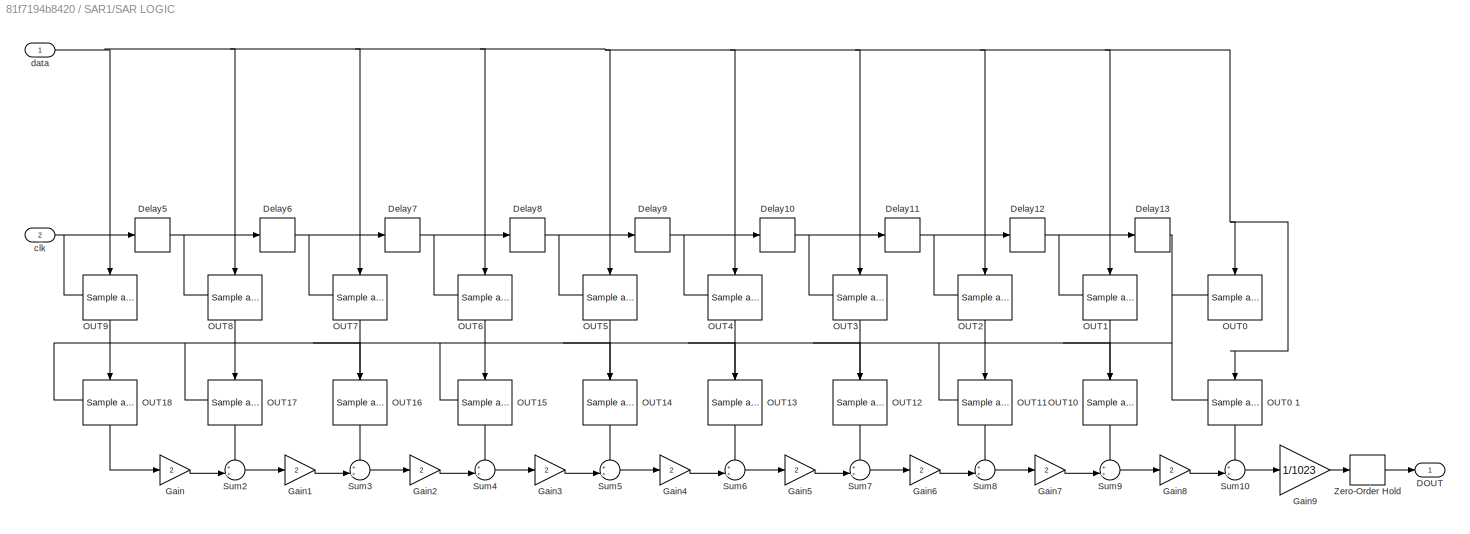
BLOCK [SubSystem] SAR1/SAR LOGIC 
  Ports = [2, 1]
  RequestExecContextInheritance = off
BLOCK [Outport] SAR1/SAR LOGIC /DOUT
  IconDisplay = Port number
BLOCK [Delay] SAR1/SAR LOGIC /Delay10
  DelayLength = 1
  InitialCondition = 0
  InputPortMap = u0
  Ports = [1, 1]
  SampleTime = 1e-9
BLOCK [Delay] SAR1/SAR LOGIC /Delay11
  DelayLength = 1
  InitialCondition = 0
  InputPortMap = u0
  Ports = [1, 1]
  SampleTime = 1e-9
BLOCK [Delay] SAR1/SAR LOGIC /Delay12
  DelayLength = 1
  InitialCondition = 0
  InputPortMap = u0
  Ports = [1, 1]
  SampleTime = 1e-9
BLOCK [Delay] SAR1/SAR LOGIC /Delay13
  DelayLength = 1
  InitialCondition = 0
  InputPortMap = u0
  Ports = [1, 1]
  SampleTime = 1e-9
BLOCK [Delay] SAR1/SAR LOGIC /Delay5
  DelayLength = 1
  InitialCondition = 0
  InputPortMap = u0
  Ports = [1, 1]
  SampleTime = 1e-9
BLOCK [Delay] SAR1/SAR LOGIC /Delay6
  DelayLength = 1
  InitialCondition = 0
  InputPortMap = u0
  Ports = [1, 1]
  SampleTime = 1e-9
BLOCK [Delay] SAR1/SAR LOGIC /Delay7
  DelayLength = 1
  InitialCondition = 0
  InputPortMap = u0
  Ports = [1, 1]
  SampleTime = 1e-9
BLOCK [Delay] SAR1/SAR LOGIC /Delay8
  DelayLength = 1
  InitialCondition = 0
  InputPortMap = u0
  Ports = [1, 1]
  SampleTime = 1e-9
BLOCK [Delay] SAR1/SAR LOGIC /Delay9
  DelayLength = 1
  InitialCondition = 0
  InputPortMap = u0
  Ports = [1, 1]
  SampleTime = 1e-9
BLOCK [Gain] SAR1/SAR LOGIC /Gain
  Gain = 2
  OutDataTypeStr = Inherit: Inherit via internal rule
  ParamDataTypeStr = Inherit: Inherit via internal rule
  SaturateOnIntegerOverflow = off
BLOCK [Gain] SAR1/SAR LOGIC /Gain1
  Gain = 2
  OutDataTypeStr = Inherit: Inherit via internal rule
  ParamDataTypeStr = Inherit: Inherit via internal rule
  SaturateOnIntegerOverflow = off
BLOCK [Gain] SAR1/SAR LOGIC /Gain2
  Gain = 2
  OutDataTypeStr = Inherit: Inherit via internal rule
  ParamDataTypeStr = Inherit: Inherit via internal rule
  SaturateOnIntegerOverflow = off
BLOCK [Gain] SAR1/SAR LOGIC /Gain3
  Gain = 2
  OutDataTypeStr = Inherit: Inherit via internal rule
  ParamDataTypeStr = Inherit: Inherit via internal rule
  SaturateOnIntegerOverflow = off
BLOCK [Gain] SAR1/SAR LOGIC /Gain4
  Gain = 2
  OutDataTypeStr = Inherit: Inherit via internal rule
  ParamDataTypeStr = Inherit: Inherit via internal rule
  SaturateOnIntegerOverflow = off
BLOCK [Gain] SAR1/SAR LOGIC /Gain5
  Gain = 2
  OutDataTypeStr = Inherit: Inherit via internal rule
  ParamDataTypeStr = Inherit: Inherit via internal rule
  SaturateOnIntegerOverflow = off
BLOCK [Gain] SAR1/SAR LOGIC /Gain6
  Gain = 2
  OutDataTypeStr = Inherit: Inherit via internal rule
  ParamDataTypeStr = Inherit: Inherit via internal rule
  SaturateOnIntegerOverflow = off
BLOCK [Gain] SAR1/SAR LOGIC /Gain7
  Gain = 2
  OutDataTypeStr = Inherit: Inherit via internal rule
  ParamDataTypeStr = Inherit: Inherit via internal rule
  SaturateOnIntegerOverflow = off
BLOCK [Gain] SAR1/SAR LOGIC /Gain8
  Gain = 2
  OutDataTypeStr = Inherit: Inherit via internal rule
  ParamDataTypeStr = Inherit: Inherit via internal rule
  SaturateOnIntegerOverflow = off
BLOCK [Gain] SAR1/SAR LOGIC /Gain9
  Gain = 1/1023
  OutDataTypeStr = Inherit: Inherit via internal rule
  ParamDataTypeStr = Inherit: Inherit via internal rule
  SaturateOnIntegerOverflow = off
BLOCK [Reference] SAR1/SAR LOGIC /OUT0   REF=dspsigops/Sample
and Hold
  Ports = [1, 1, 0, 1]
  SourceBlock = dspsigops/Sample\nand Hold
  SourceProductBaseCode = DS
  SourceProductName = DSP System Toolbox
  SourceType = Sample and Hold
BLOCK [Reference] SAR1/SAR LOGIC /OUT0 1  REF=dspsigops/Sample
and Hold
  Ports = [1, 1, 0, 1]
  SourceBlock = dspsigops/Sample\nand Hold
  SourceProductBaseCode = DS
  SourceProductName = DSP System Toolbox
  SourceType = Sample and Hold
BLOCK [Reference] SAR1/SAR LOGIC /OUT1  REF=dspsigops/Sample
and Hold
  Ports = [1, 1, 0, 1]
  SourceBlock = dspsigops/Sample\nand Hold
  SourceProductBaseCode = DS
  SourceProductName = DSP System Toolbox
  SourceType = Sample and Hold
BLOCK [Reference] SAR1/SAR LOGIC /OUT10  REF=dspsigops/Sample
and Hold
  Ports = [1, 1, 0, 1]
  SourceBlock = dspsigops/Sample\nand Hold
  SourceProductBaseCode = DS
  SourceProductName = DSP System Toolbox
  SourceType = Sample and Hold
BLOCK [Reference] SAR1/SAR LOGIC /OUT11  REF=dspsigops/Sample
and Hold
  Ports = [1, 1, 0, 1]
  SourceBlock = dspsigops/Sample\nand Hold
  SourceProductBaseCode = DS
  SourceProductName = DSP System Toolbox
  SourceType = Sample and Hold
BLOCK [Reference] SAR1/SAR LOGIC /OUT12  REF=dspsigops/Sample
and Hold
  Ports = [1, 1, 0, 1]
  SourceBlock = dspsigops/Sample\nand Hold
  SourceProductBaseCode = DS
  SourceProductName = DSP System Toolbox
  SourceType = Sample and Hold
BLOCK [Reference] SAR1/SAR LOGIC /OUT13  REF=dspsigops/Sample
and Hold
  Ports = [1, 1, 0, 1]
  SourceBlock = dspsigops/Sample\nand Hold
  SourceProductBaseCode = DS
  SourceProductName = DSP System Toolbox
  SourceType = Sample and Hold
BLOCK [Reference] SAR1/SAR LOGIC /OUT14  REF=dspsigops/Sample
and Hold
  Ports = [1, 1, 0, 1]
  SourceBlock = dspsigops/Sample\nand Hold
  SourceProductBaseCode = DS
  SourceProductName = DSP System Toolbox
  SourceType = Sample and Hold
BLOCK [Reference] SAR1/SAR LOGIC /OUT15  REF=dspsigops/Sample
and Hold
  Ports = [1, 1, 0, 1]
  SourceBlock = dspsigops/Sample\nand Hold
  SourceProductBaseCode = DS
  SourceProductName = DSP System Toolbox
  SourceType = Sample and Hold
BLOCK [Reference] SAR1/SAR LOGIC /OUT16  REF=dspsigops/Sample
and Hold
  Ports = [1, 1, 0, 1]
  SourceBlock = dspsigops/Sample\nand Hold
  SourceProductBaseCode = DS
  SourceProductName = DSP System Toolbox
  SourceType = Sample and Hold
BLOCK [Reference] SAR1/SAR LOGIC /OUT17  REF=dspsigops/Sample
and Hold
  Ports = [1, 1, 0, 1]
  SourceBlock = dspsigops/Sample\nand Hold
  SourceProductBaseCode = DS
  SourceProductName = DSP System Toolbox
  SourceType = Sample and Hold
BLOCK [Reference] SAR1/SAR LOGIC /OUT18  REF=dspsigops/Sample
and Hold
  Ports = [1, 1, 0, 1]
  SourceBlock = dspsigops/Sample\nand Hold
  SourceProductBaseCode = DS
  SourceProductName = DSP System Toolbox
  SourceType = Sample and Hold
BLOCK [Reference] SAR1/SAR LOGIC /OUT2  REF=dspsigops/Sample
and Hold
  Ports = [1, 1, 0, 1]
  SourceBlock = dspsigops/Sample\nand Hold
  SourceProductBaseCode = DS
  SourceProductName = DSP System Toolbox
  SourceType = Sample and Hold
BLOCK [Reference] SAR1/SAR LOGIC /OUT3  REF=dspsigops/Sample
and Hold
  Ports = [1, 1, 0, 1]
  SourceBlock = dspsigops/Sample\nand Hold
  SourceProductBaseCode = DS
  SourceProductName = DSP System Toolbox
  SourceType = Sample and Hold
BLOCK [Reference] SAR1/SAR LOGIC /OUT4  REF=dspsigops/Sample
and Hold
  Ports = [1, 1, 0, 1]
  SourceBlock = dspsigops/Sample\nand Hold
  SourceProductBaseCode = DS
  SourceProductName = DSP System Toolbox
  SourceType = Sample and Hold
BLOCK [Reference] SAR1/SAR LOGIC /OUT5  REF=dspsigops/Sample
and Hold
  Ports = [1, 1, 0, 1]
  SourceBlock = dspsigops/Sample\nand Hold
  SourceProductBaseCode = DS
  SourceProductName = DSP System Toolbox
  SourceType = Sample and Hold
BLOCK [Reference] SAR1/SAR LOGIC /OUT6  REF=dspsigops/Sample
and Hold
  Ports = [1, 1, 0, 1]
  SourceBlock = dspsigops/Sample\nand Hold
  SourceProductBaseCode = DS
  SourceProductName = DSP System Toolbox
  SourceType = Sample and Hold
BLOCK [Reference] SAR1/SAR LOGIC /OUT7  REF=dspsigops/Sample
and Hold
  Ports = [1, 1, 0, 1]
  SourceBlock = dspsigops/Sample\nand Hold
  SourceProductBaseCode = DS
  SourceProductName = DSP System Toolbox
  SourceType = Sample and Hold
BLOCK [Reference] SAR1/SAR LOGIC /OUT8  REF=dspsigops/Sample
and Hold
  Ports = [1, 1, 0, 1]
  SourceBlock = dspsigops/Sample\nand Hold
  SourceProductBaseCode = DS
  SourceProductName = DSP System Toolbox
  SourceType = Sample and Hold
BLOCK [Reference] SAR1/SAR LOGIC /OUT9  REF=dspsigops/Sample
and Hold
  Ports = [1, 1, 0, 1]
  SourceBlock = dspsigops/Sample\nand Hold
  SourceProductBaseCode = DS
  SourceProductName = DSP System Toolbox
  SourceType = Sample and Hold
BLOCK [Sum] SAR1/SAR LOGIC /Sum10
  IconShape = round
  InputSameDT = off
  Inputs = ++|
  OutDataTypeStr = Inherit: Inherit via internal rule
  Ports = [2, 1]
  SaturateOnIntegerOverflow = off
BLOCK [Sum] SAR1/SAR LOGIC /Sum2
  IconShape = round
  InputSameDT = off
  Inputs = ++|
  OutDataTypeStr = Inherit: Inherit via internal rule
  Ports = [2, 1]
  SaturateOnIntegerOverflow = off
BLOCK [Sum] SAR1/SAR LOGIC /Sum3
  IconShape = round
  InputSameDT = off
  Inputs = ++|
  OutDataTypeStr = Inherit: Inherit via internal rule
  Ports = [2, 1]
  SaturateOnIntegerOverflow = off
BLOCK [Sum] SAR1/SAR LOGIC /Sum4
  IconShape = round
  InputSameDT = off
  Inputs = ++|
  OutDataTypeStr = Inherit: Inherit via internal rule
  Ports = [2, 1]
  SaturateOnIntegerOverflow = off
BLOCK [Sum] SAR1/SAR LOGIC /Sum5
  IconShape = round
  InputSameDT = off
  Inputs = ++|
  OutDataTypeStr = Inherit: Inherit via internal rule
  Ports = [2, 1]
  SaturateOnIntegerOverflow = off
BLOCK [Sum] SAR1/SAR LOGIC /Sum6
  IconShape = round
  InputSameDT = off
  Inputs = ++|
  OutDataTypeStr = Inherit: Inherit via internal rule
  Ports = [2, 1]
  SaturateOnIntegerOverflow = off
BLOCK [Sum] SAR1/SAR LOGIC /Sum7
  IconShape = round
  InputSameDT = off
  Inputs = ++|
  OutDataTypeStr = Inherit: Inherit via internal rule
  Ports = [2, 1]
  SaturateOnIntegerOverflow = off
BLOCK [Sum] SAR1/SAR LOGIC /Sum8
  IconShape = round
  InputSameDT = off
  Inputs = ++|
  OutDataTypeStr = Inherit: Inherit via internal rule
  Ports = [2, 1]
  SaturateOnIntegerOverflow = off
BLOCK [Sum] SAR1/SAR LOGIC /Sum9
  IconShape = round
  InputSameDT = off
  Inputs = ++|
  OutDataTypeStr = Inherit: Inherit via internal rule
  Ports = [2, 1]
  SaturateOnIntegerOverflow = off
BLOCK [ZeroOrderHold] SAR1/SAR LOGIC /Zero-Order Hold
  SampleTime = 1e-9*10
BLOCK [Inport] SAR1/SAR LOGIC /clk
  IconDisplay = Port number
  Port = 2
BLOCK [Inport] SAR1/SAR LOGIC /data
  IconDisplay = Port number
BLOCK [Reference] SAR1/Sample and Hold  REF=dspsigops/Sample
and Hold
  Ports = [1, 1, 0, 1]
  SourceBlock = dspsigops/Sample\nand Hold
  SourceProductBaseCode = DS
  SourceProductName = DSP System Toolbox
  SourceType = Sample and Hold
BLOCK [Sum] SAR1/Sum1
  IconShape = round
  InputSameDT = off
  Inputs = |+-
  OutDataTypeStr = Inherit: Inherit via internal rule
  Ports = [2, 1]
  SaturateOnIntegerOverflow = off
BLOCK [SubSystem] SAR1/V-DAC
  Ports = [3, 1]
  RequestExecContextInheritance = off
BLOCK [Inport] SAR1/V-DAC/DAC_PT
  IconDisplay = Port number
  Port = 2
BLOCK [Outport] SAR1/V-DAC/DAC_VOUT
  IconDisplay = Port number
BLOCK [Delay] SAR1/V-DAC/Delay
  DelayLength = 1
  ExternalReset = Rising
  InitialCondition = 0
  InputPortMap = u0,r5
  Ports = [2, 1]
  SampleTime = 1e-9
BLOCK [Delay] SAR1/V-DAC/Delay2
  DelayLength = 1
  ExternalReset = Rising
  InitialCondition = 0
  InputPortMap = u0,r5
  Ports = [2, 1]
  SampleTime = 1e-9
BLOCK [LookupNDDirect] SAR1/V-DAC/Direct Lookup Table (n-D)
  NumberOfTableDimensions = 1
  Ports = [1, 1]
  Table = vdac
BLOCK [Product] SAR1/V-DAC/Product
  InputSameDT = off
  OutDataTypeStr = Inherit: Inherit via internal rule
  Ports = [2, 1]
  RndMeth = Floor
  SaturateOnIntegerOverflow = off
BLOCK [Sum] SAR1/V-DAC/Sum
  IconShape = round
  InputSameDT = off
  Inputs = |++
  OutDataTypeStr = Inherit: Inherit via internal rule
  Ports = [2, 1]
  SaturateOnIntegerOverflow = off
BLOCK [Inport] SAR1/V-DAC/rst
  IconDisplay = Port number
  Port = 3
BLOCK [Inport] SAR1/V-DAC/sign
  IconDisplay = Port number
BLOCK [Inport] SAR1/Vin
  IconDisplay = Port number
BLOCK [Inport] SAR1/rst
  IconDisplay = Port number
  Port = 3
BLOCK [SubSystem] SIGNAL_IN
  Ports = [0, 2]
  RequestExecContextInheritance = off
BLOCK [Constant] SIGNAL_IN/Constant
  Value = -1
BLOCK [Constant] SIGNAL_IN/Constant1
BLOCK [Product] SIGNAL_IN/Product1
  InputSameDT = off
  OutDataTypeStr = Inherit: Inherit via internal rule
  Ports = [2, 1]
  RndMeth = Floor
  SaturateOnIntegerOverflow = off
BLOCK [Product] SIGNAL_IN/Product2
  InputSameDT = off
  OutDataTypeStr = Inherit: Inherit via internal rule
  Ports = [2, 1]
  RndMeth = Floor
  SaturateOnIntegerOverflow = off
BLOCK [Sin] SIGNAL_IN/Sine Wave Function
  Amplitude = vin_amp
  Frequency = 2*pi*fsig
  Ports = [0, 1]
  SampleTime = 0
BLOCK [Outport] SIGNAL_IN/VINN
  IconDisplay = Port number
  Port = 2
BLOCK [Outport] SIGNAL_IN/VINP
  IconDisplay = Port number
BLOCK [ToWorkspace] To Workspace
  FixptAsFi = on
  MaxDataPoints = inf
  Ports = [1]
  SampleTime = -1
  VariableName = SAR_DOUT
ANNOTATION SAR/DS_MOD2/ICMP_RESin1: 0 order
ANNOTATION SAR/DS_MOD2/ICMP_RESin1: mod1
ANNOTATION SAR/DS_MOD2/ICMP_RESin1: mod2
ANNOTATION SAR/H(RES): 0 order
ANNOTATION SAR/H(RES): mod1
ANNOTATION SAR/H(RES): mod2
LINE CTRL_GEN/CLK_REF:1 -> CTRL_GEN/Counter:1
LINE CTRL_GEN/Counter:1 -> CTRL_GEN/Delay3:1
LINE CTRL_GEN/Counter:2 -> CTRL_GEN/Delay1:1
NET CTRL_GEN/Delay1:1 -> CTRL_GEN/Counter:2, CTRL_GEN/rst:1
LINE CTRL_GEN/Delay3:1 -> CTRL_GEN/DAC_PT:1
LINE CTRL_GEN:1 -> SAR:3
LINE CTRL_GEN:2 -> SAR:4
LINE Pulse Generator:1 -> CTRL_GEN:1
LINE SAR/Comparator/Gain:1 -> SAR/Comparator/Sum1:2
LINE SAR/Comparator/RESin:1 -> SAR/Comparator/Gain:1
LINE SAR/Comparator/Random Number:1 -> SAR/Comparator/Sum:1
LINE SAR/Comparator/Relay:1 -> SAR/Comparator/Sign:1
LINE SAR/Comparator/Sum1:1 -> SAR/Comparator/Relay:1
LINE SAR/Comparator/Sum:1 -> SAR/Comparator/Sum1:1
LINE SAR/Comparator/Vin:1 -> SAR/Comparator/Sum:2
NET SAR/Comparator:1 -> SAR/Gain:1, SAR/SAMP_DACN_RES2:1, SAR/SAR 10-bits LOGIC :1, SAR/SAR LOGIC :1, SAR/V-DACp:1
LINE SAR/Constant2:1 -> SAR/Product:2
LINE SAR/Constant:1 -> SAR/Manual Switch1:2
NET SAR/DAC_PT:1 -> SAR/V-DACn:2, SAR/V-DACp:2
NET SAR/DS_MOD2/CLK_RES:1 -> SAR/DS_MOD2/ICMP_RESin1:1, SAR/DS_MOD2/SAMP_DACN_RES1:trigger
LINE SAR/DS_MOD2/Gain1:1 -> SAR/DS_MOD2/Round:1
NET SAR/DS_MOD2/Gain2:1 -> SAR/DS_MOD2/Sum4:2, SAR/DS_MOD2/Zero-Order Hold:1
NET SAR/DS_MOD2/ICMP_RESin1/CLK_RES:1 -> SAR/DS_MOD2/ICMP_RESin1/Switch1:2, SAR/DS_MOD2/ICMP_RESin1/Switch:2
LINE SAR/DS_MOD2/ICMP_RESin1/Constant1:1 -> SAR/DS_MOD2/ICMP_RESin1/Switch1:3
LINE SAR/DS_MOD2/ICMP_RESin1/Constant:1 -> SAR/DS_MOD2/ICMP_RESin1/Switch:3
LINE SAR/DS_MOD2/ICMP_RESin1/Delay1:1 -> SAR/DS_MOD2/ICMP_RESin1/CMP_RESin:1
LINE SAR/DS_MOD2/ICMP_RESin1/Delay2:1 -> SAR/DS_MOD2/ICMP_RESin1/Switch1:1
LINE SAR/DS_MOD2/ICMP_RESin1/Gain:1 -> SAR/DS_MOD2/ICMP_RESin1/Sum1:1
LINE SAR/DS_MOD2/ICMP_RESin1/Manual Switch1:1 -> SAR/DS_MOD2/ICMP_RESin1/Delay1:1
LINE SAR/DS_MOD2/ICMP_RESin1/Manual Switch2:1 -> SAR/DS_MOD2/ICMP_RESin1/Manual Switch1:2
LINE SAR/DS_MOD2/ICMP_RESin1/Sum1:1 -> SAR/DS_MOD2/ICMP_RESin1/Manual Switch2:2
LINE SAR/DS_MOD2/ICMP_RESin1/Switch1:1 -> SAR/DS_MOD2/ICMP_RESin1/int2_2:1
LINE SAR/DS_MOD2/ICMP_RESin1/Switch:1 -> SAR/DS_MOD2/ICMP_RESin1/int1:1
LINE SAR/DS_MOD2/ICMP_RESin1/int1/Delay1:1 -> SAR/DS_MOD2/ICMP_RESin1/int1/Sum:2
NET SAR/DS_MOD2/ICMP_RESin1/int1/Gain:1 -> SAR/DS_MOD2/ICMP_RESin1/int1/Delay1:1, SAR/DS_MOD2/ICMP_RESin1/int1/Out:1
LINE SAR/DS_MOD2/ICMP_RESin1/int1/IN:1 -> SAR/DS_MOD2/ICMP_RESin1/int1/Sum:1
LINE SAR/DS_MOD2/ICMP_RESin1/int1/Sum:1 -> SAR/DS_MOD2/ICMP_RESin1/int1/Gain:1
NET SAR/DS_MOD2/ICMP_RESin1/int1:1 -> SAR/DS_MOD2/ICMP_RESin1/Delay2:1, SAR/DS_MOD2/ICMP_RESin1/Gain:1, SAR/DS_MOD2/ICMP_RESin1/Manual Switch2:1
LINE SAR/DS_MOD2/ICMP_RESin1/int2_2/Delay1:1 -> SAR/DS_MOD2/ICMP_RESin1/int2_2/Sum:2
NET SAR/DS_MOD2/ICMP_RESin1/int2_2/Gain:1 -> SAR/DS_MOD2/ICMP_RESin1/int2_2/Delay1:1, SAR/DS_MOD2/ICMP_RESin1/int2_2/Out:1
LINE SAR/DS_MOD2/ICMP_RESin1/int2_2/IN:1 -> SAR/DS_MOD2/ICMP_RESin1/int2_2/Sum:1
LINE SAR/DS_MOD2/ICMP_RESin1/int2_2/Sum:1 -> SAR/DS_MOD2/ICMP_RESin1/int2_2/Gain:1
LINE SAR/DS_MOD2/ICMP_RESin1/int2_2:1 -> SAR/DS_MOD2/ICMP_RESin1/Sum1:2
LINE SAR/DS_MOD2/ICMP_RESin1/res2:1 -> SAR/DS_MOD2/ICMP_RESin1/Switch:1
LINE SAR/DS_MOD2/ICMP_RESin1:1 -> SAR/DS_MOD2/Sum5:2
LINE SAR/DS_MOD2/Round:1 -> SAR/DS_MOD2/Gain2:1
LINE SAR/DS_MOD2/SAMP_DACN_RES1:1 -> SAR/DS_MOD2/ICMP_RESin1:2
NET SAR/DS_MOD2/Sum3:1 -> SAR/DS_MOD2/Sum4:1, SAR/DS_MOD2/Sum5:1
LINE SAR/DS_MOD2/Sum4:1 -> SAR/DS_MOD2/SAMP_DACN_RES1:1
LINE SAR/DS_MOD2/Sum5:1 -> SAR/DS_MOD2/Gain1:1
LINE SAR/DS_MOD2/VSAMPn:1 -> SAR/DS_MOD2/Sum3:2
LINE SAR/DS_MOD2/VSAMPp:1 -> SAR/DS_MOD2/Sum3:1
LINE SAR/DS_MOD2/Zero-Order Hold:1 -> SAR/DS_MOD2/Dout:1
LINE SAR/DS_MOD2:1 -> SAR/Manual Switch2:1
LINE SAR/Delay2:1 -> SAR/Goto:1
LINE SAR/From10:1 -> SAR/Product:1
LINE SAR/From1:1 -> SAR/SAMP_DACP_RES:trigger
LINE SAR/From2:1 -> SAR/H(RES):1
LINE SAR/From3:1 -> SAR/Comparator:2
LINE SAR/From4:1 -> SAR/DS_MOD2:2
LINE SAR/From5:1 -> SAR/DS_MOD2:1
LINE SAR/From6:1 -> SAR/DS_MOD2:3
LINE SAR/From7:1 -> SAR/SAMP_DACN_RES2:trigger
LINE SAR/From8:1 -> SAR/Sum6:1
LINE SAR/From9:1 -> SAR/Sum6:2
LINE SAR/From:1 -> SAR/SAMP_DACN_RES:trigger
LINE SAR/Gain:1 -> SAR/V-DACn:1
NET SAR/H(RES)/CLK_RES:1 -> SAR/H(RES)/Switch1:2, SAR/H(RES)/Switch:2
LINE SAR/H(RES)/Constant1:1 -> SAR/H(RES)/Switch1:3
LINE SAR/H(RES)/Constant:1 -> SAR/H(RES)/Switch:3
LINE SAR/H(RES)/Delay1:1 -> SAR/H(RES)/CMP_RESin:1
LINE SAR/H(RES)/Delay2:1 -> SAR/H(RES)/Switch1:1
LINE SAR/H(RES)/Gain:1 -> SAR/H(RES)/Sum1:1
LINE SAR/H(RES)/Manual Switch1:1 -> SAR/H(RES)/Delay1:1
LINE SAR/H(RES)/Manual Switch2:1 -> SAR/H(RES)/Manual Switch1:2
LINE SAR/H(RES)/Sum1:1 -> SAR/H(RES)/Manual Switch2:2
LINE SAR/H(RES)/Switch1:1 -> SAR/H(RES)/int2_2:1
LINE SAR/H(RES)/Switch:1 -> SAR/H(RES)/int1:1
LINE SAR/H(RES)/int1/Delay1:1 -> SAR/H(RES)/int1/Sum:2
NET SAR/H(RES)/int1/Gain:1 -> SAR/H(RES)/int1/Delay1:1, SAR/H(RES)/int1/Out:1
LINE SAR/H(RES)/int1/IN:1 -> SAR/H(RES)/int1/Sum:1
LINE SAR/H(RES)/int1/Sum:1 -> SAR/H(RES)/int1/Gain:1
NET SAR/H(RES)/int1:1 -> SAR/H(RES)/Delay2:1, SAR/H(RES)/Gain:1, SAR/H(RES)/Manual Switch2:1
LINE SAR/H(RES)/int2_2/Delay1:1 -> SAR/H(RES)/int2_2/Sum:2
NET SAR/H(RES)/int2_2/Gain:1 -> SAR/H(RES)/int2_2/Delay1:1, SAR/H(RES)/int2_2/Out:1
LINE SAR/H(RES)/int2_2/IN:1 -> SAR/H(RES)/int2_2/Sum:1
LINE SAR/H(RES)/int2_2/Sum:1 -> SAR/H(RES)/int2_2/Gain:1
LINE SAR/H(RES)/int2_2:1 -> SAR/H(RES)/Sum1:2
NET SAR/H(RES)/res1:1 -> SAR/H(RES)/Manual Switch1:1, SAR/H(RES)/Switch:1
LINE SAR/H(RES):1 -> SAR/Manual Switch1:1
LINE SAR/ICMP_Vin/Sum1:1 -> SAR/ICMP_Vin/CMP_Vin:1
LINE SAR/ICMP_Vin/inn:1 -> SAR/ICMP_Vin/Sum1:2
LINE SAR/ICMP_Vin/inp:1 -> SAR/ICMP_Vin/Sum1:1
LINE SAR/ICMP_Vin:1 -> SAR/Comparator:1
LINE SAR/Manual Switch1:1 -> SAR/Goto1:1
LINE SAR/Manual Switch2:1 -> SAR/DOUT:1
LINE SAR/Product:1 -> SAR/Sum6:3
LINE SAR/SAMP_DACN_RES2:1 -> SAR/Goto6:1
LINE SAR/SAMP_DACN_RES:1 -> SAR/Goto5:1
LINE SAR/SAMP_DACP_RES:1 -> SAR/Goto4:1
NET SAR/SAR 10-bits LOGIC /Delay10:1 -> SAR/SAR 10-bits LOGIC /Delay11:1, SAR/SAR 10-bits LOGIC /OUT3:trigger
NET SAR/SAR 10-bits LOGIC /Delay11:1 -> SAR/SAR 10-bits LOGIC /Delay12:1, SAR/SAR 10-bits LOGIC /OUT2:trigger
NET SAR/SAR 10-bits LOGIC /Delay12:1 -> SAR/SAR 10-bits LOGIC /Delay13:1, SAR/SAR 10-bits LOGIC /OUT1:trigger
NET SAR/SAR 10-bits LOGIC /Delay13:1 -> SAR/SAR 10-bits LOGIC /OUT0 1:trigger, SAR/SAR 10-bits LOGIC /OUT0 :trigger, SAR/SAR 10-bits LOGIC /OUT10:trigger, SAR/SAR 10-bits LOGIC /OUT11:trigger, SAR/SAR 10-bits LOGIC /OUT12:trigger, SAR/SAR 10-bits LOGIC /OUT13:trigger, SAR/SAR 10-bits LOGIC /OUT14:trigger, SAR/SAR 10-bits LOGIC /OUT15:trigger, SAR/SAR 10-bits LOGIC /OUT16:trigger, SAR/SAR 10-bits LOGIC /OUT17:trigger, SAR/SAR 10-bits LOGIC /OUT18:trigger
NET SAR/SAR 10-bits LOGIC /Delay5:1 -> SAR/SAR 10-bits LOGIC /Delay6:1, SAR/SAR 10-bits LOGIC /OUT8:trigger
NET SAR/SAR 10-bits LOGIC /Delay6:1 -> SAR/SAR 10-bits LOGIC /Delay7:1, SAR/SAR 10-bits LOGIC /OUT7:trigger
NET SAR/SAR 10-bits LOGIC /Delay7:1 -> SAR/SAR 10-bits LOGIC /Delay8:1, SAR/SAR 10-bits LOGIC /OUT6:trigger
NET SAR/SAR 10-bits LOGIC /Delay8:1 -> SAR/SAR 10-bits LOGIC /Delay9:1, SAR/SAR 10-bits LOGIC /OUT5:trigger
NET SAR/SAR 10-bits LOGIC /Delay9:1 -> SAR/SAR 10-bits LOGIC /Delay10:1, SAR/SAR 10-bits LOGIC /OUT4:trigger
LINE SAR/SAR 10-bits LOGIC /Gain1:1 -> SAR/SAR 10-bits LOGIC /Sum3:2
LINE SAR/SAR 10-bits LOGIC /Gain2:1 -> SAR/SAR 10-bits LOGIC /Sum4:2
LINE SAR/SAR 10-bits LOGIC /Gain3:1 -> SAR/SAR 10-bits LOGIC /Sum5:2
LINE SAR/SAR 10-bits LOGIC /Gain4:1 -> SAR/SAR 10-bits LOGIC /Sum6:2
LINE SAR/SAR 10-bits LOGIC /Gain5:1 -> SAR/SAR 10-bits LOGIC /Sum7:2
LINE SAR/SAR 10-bits LOGIC /Gain6:1 -> SAR/SAR 10-bits LOGIC /Sum8:2
LINE SAR/SAR 10-bits LOGIC /Gain7:1 -> SAR/SAR 10-bits LOGIC /Sum9:2
LINE SAR/SAR 10-bits LOGIC /Gain8:1 -> SAR/SAR 10-bits LOGIC /Sum10:2
LINE SAR/SAR 10-bits LOGIC /Gain9:1 -> SAR/SAR 10-bits LOGIC /Zero-Order Hold:1
LINE SAR/SAR 10-bits LOGIC /Gain:1 -> SAR/SAR 10-bits LOGIC /Sum2:2
LINE SAR/SAR 10-bits LOGIC /OUT0 1:1 -> SAR/SAR 10-bits LOGIC /Sum10:1
LINE SAR/SAR 10-bits LOGIC /OUT10:1 -> SAR/SAR 10-bits LOGIC /Sum9:1
LINE SAR/SAR 10-bits LOGIC /OUT11:1 -> SAR/SAR 10-bits LOGIC /Sum8:1
LINE SAR/SAR 10-bits LOGIC /OUT12:1 -> SAR/SAR 10-bits LOGIC /Sum7:1
LINE SAR/SAR 10-bits LOGIC /OUT13:1 -> SAR/SAR 10-bits LOGIC /Sum6:1
LINE SAR/SAR 10-bits LOGIC /OUT14:1 -> SAR/SAR 10-bits LOGIC /Sum5:1
LINE SAR/SAR 10-bits LOGIC /OUT15:1 -> SAR/SAR 10-bits LOGIC /Sum4:1
LINE SAR/SAR 10-bits LOGIC /OUT16:1 -> SAR/SAR 10-bits LOGIC /Sum3:1
LINE SAR/SAR 10-bits LOGIC /OUT17:1 -> SAR/SAR 10-bits LOGIC /Sum2:1
LINE SAR/SAR 10-bits LOGIC /OUT18:1 -> SAR/SAR 10-bits LOGIC /Gain:1
LINE SAR/SAR 10-bits LOGIC /OUT1:1 -> SAR/SAR 10-bits LOGIC /OUT10:1
LINE SAR/SAR 10-bits LOGIC /OUT2:1 -> SAR/SAR 10-bits LOGIC /OUT11:1
LINE SAR/SAR 10-bits LOGIC /OUT3:1 -> SAR/SAR 10-bits LOGIC /OUT12:1
LINE SAR/SAR 10-bits LOGIC /OUT4:1 -> SAR/SAR 10-bits LOGIC /OUT13:1
LINE SAR/SAR 10-bits LOGIC /OUT5:1 -> SAR/SAR 10-bits LOGIC /OUT14:1
LINE SAR/SAR 10-bits LOGIC /OUT6:1 -> SAR/SAR 10-bits LOGIC /OUT15:1
LINE SAR/SAR 10-bits LOGIC /OUT7:1 -> SAR/SAR 10-bits LOGIC /OUT16:1
LINE SAR/SAR 10-bits LOGIC /OUT8:1 -> SAR/SAR 10-bits LOGIC /OUT17:1
LINE SAR/SAR 10-bits LOGIC /OUT9:1 -> SAR/SAR 10-bits LOGIC /OUT18:1
LINE SAR/SAR 10-bits LOGIC /Sum10:1 -> SAR/SAR 10-bits LOGIC /Gain9:1
LINE SAR/SAR 10-bits LOGIC /Sum2:1 -> SAR/SAR 10-bits LOGIC /Gain1:1
LINE SAR/SAR 10-bits LOGIC /Sum3:1 -> SAR/SAR 10-bits LOGIC /Gain2:1
LINE SAR/SAR 10-bits LOGIC /Sum4:1 -> SAR/SAR 10-bits LOGIC /Gain3:1
LINE SAR/SAR 10-bits LOGIC /Sum5:1 -> SAR/SAR 10-bits LOGIC /Gain4:1
LINE SAR/SAR 10-bits LOGIC /Sum6:1 -> SAR/SAR 10-bits LOGIC /Gain5:1
LINE SAR/SAR 10-bits LOGIC /Sum7:1 -> SAR/SAR 10-bits LOGIC /Gain6:1
LINE SAR/SAR 10-bits LOGIC /Sum8:1 -> SAR/SAR 10-bits LOGIC /Gain7:1
LINE SAR/SAR 10-bits LOGIC /Sum9:1 -> SAR/SAR 10-bits LOGIC /Gain8:1
LINE SAR/SAR 10-bits LOGIC /Zero-Order Hold:1 -> SAR/SAR 10-bits LOGIC /DOUT:1
NET SAR/SAR 10-bits LOGIC /clk:1 -> SAR/SAR 10-bits LOGIC /Delay5:1, SAR/SAR 10-bits LOGIC /OUT9:trigger
NET SAR/SAR 10-bits LOGIC /data:1 -> SAR/SAR 10-bits LOGIC /OUT0 1:1, SAR/SAR 10-bits LOGIC /OUT0 :1, SAR/SAR 10-bits LOGIC /OUT1:1, SAR/SAR 10-bits LOGIC /OUT2:1, SAR/SAR 10-bits LOGIC /OUT3:1, SAR/SAR 10-bits LOGIC /OUT4:1, SAR/SAR 10-bits LOGIC /OUT5:1, SAR/SAR 10-bits LOGIC /OUT6:1, SAR/SAR 10-bits LOGIC /OUT7:1, SAR/SAR 10-bits LOGIC /OUT8:1, SAR/SAR 10-bits LOGIC /OUT9:1
LINE SAR/SAR LOGIC /Delay1:1 -> SAR/SAR LOGIC /Gain10:1
LINE SAR/SAR LOGIC /Delay2:1 -> SAR/SAR LOGIC /OUT0 2:trigger
LINE SAR/SAR LOGIC /Delay:1 -> SAR/SAR LOGIC /Delay1:2
LINE SAR/SAR LOGIC /Gain10:1 -> SAR/SAR LOGIC /Sum1:1
LINE SAR/SAR LOGIC /Gain9:1 -> SAR/SAR LOGIC /Zero-Order Hold:1
LINE SAR/SAR LOGIC /OUT0 2:1 -> SAR/SAR LOGIC /Gain9:1
NET SAR/SAR LOGIC /Sum1:1 -> SAR/SAR LOGIC /Delay1:1, SAR/SAR LOGIC /OUT0 2:1
LINE SAR/SAR LOGIC /Zero-Order Hold:1 -> SAR/SAR LOGIC /DOUT:1
NET SAR/SAR LOGIC /clk:1 -> SAR/SAR LOGIC /Delay2:1, SAR/SAR LOGIC /Delay:1
LINE SAR/SAR LOGIC /data:1 -> SAR/SAR LOGIC /Sum1:2
LINE SAR/SAR LOGIC :1 -> SAR/Manual Switch2:2
NET SAR/Sample and Hold1:1 -> SAR/Goto2:1, SAR/Sum2:1
NET SAR/Sample and Hold:1 -> SAR/Goto3:1, SAR/Sum1:1
NET SAR/Sum1:1 -> SAR/ICMP_Vin:2, SAR/SAMP_DACN_RES:1
NET SAR/Sum2:1 -> SAR/ICMP_Vin:1, SAR/SAMP_DACP_RES:1
LINE SAR/Sum6:1 -> SAR/H(RES):2
LINE SAR/V-DACn/DAC_PT:1 -> SAR/V-DACn/Direct Lookup Table (n-D):1
LINE SAR/V-DACn/Delay2:1 -> SAR/V-DACn/Product:1
LINE SAR/V-DACn/Delay:1 -> SAR/V-DACn/Sum:2
LINE SAR/V-DACn/Direct Lookup Table (n-D):1 -> SAR/V-DACn/Product:2
LINE SAR/V-DACn/Product:1 -> SAR/V-DACn/Sum:1
NET SAR/V-DACn/Sum:1 -> SAR/V-DACn/DAC_VOUT:1, SAR/V-DACn/Delay:1
NET SAR/V-DACn/rst:1 -> SAR/V-DACn/Delay2:2, SAR/V-DACn/Delay:2
LINE SAR/V-DACn/sign:1 -> SAR/V-DACn/Delay2:1
LINE SAR/V-DACn:1 -> SAR/Sum1:2
LINE SAR/V-DACp/DAC_PT:1 -> SAR/V-DACp/Direct Lookup Table (n-D):1
LINE SAR/V-DACp/Delay2:1 -> SAR/V-DACp/Product:1
LINE SAR/V-DACp/Delay:1 -> SAR/V-DACp/Sum:2
LINE SAR/V-DACp/Direct Lookup Table (n-D):1 -> SAR/V-DACp/Product:2
LINE SAR/V-DACp/Product:1 -> SAR/V-DACp/Sum:1
NET SAR/V-DACp/Sum:1 -> SAR/V-DACp/DAC_VOUT:1, SAR/V-DACp/Delay:1
NET SAR/V-DACp/rst:1 -> SAR/V-DACp/Delay2:2, SAR/V-DACp/Delay:2
LINE SAR/V-DACp/sign:1 -> SAR/V-DACp/Delay2:1
LINE SAR/V-DACp:1 -> SAR/Sum2:2
LINE SAR/Vinn:1 -> SAR/Sample and Hold:1
LINE SAR/Vinp:1 -> SAR/Sample and Hold1:1
NET SAR/rst:1 -> SAR/Delay2:1, SAR/SAR 10-bits LOGIC :2, SAR/SAR LOGIC :2, SAR/Sample and Hold1:trigger, SAR/Sample and Hold:trigger, SAR/V-DACn:3, SAR/V-DACp:3
LINE SAR1/Comparator/Relay:1 -> SAR1/Comparator/Sign:1
LINE SAR1/Comparator/Vin:1 -> SAR1/Comparator/Relay:1
NET SAR1/Comparator:1 -> SAR1/SAR LOGIC :1, SAR1/V-DAC:1
LINE SAR1/DAC_PT:1 -> SAR1/V-DAC:2
NET SAR1/SAR LOGIC /Delay10:1 -> SAR1/SAR LOGIC /Delay11:1, SAR1/SAR LOGIC /OUT3:trigger
NET SAR1/SAR LOGIC /Delay11:1 -> SAR1/SAR LOGIC /Delay12:1, SAR1/SAR LOGIC /OUT2:trigger
NET SAR1/SAR LOGIC /Delay12:1 -> SAR1/SAR LOGIC /Delay13:1, SAR1/SAR LOGIC /OUT1:trigger
NET SAR1/SAR LOGIC /Delay13:1 -> SAR1/SAR LOGIC /OUT0 1:trigger, SAR1/SAR LOGIC /OUT0 :trigger, SAR1/SAR LOGIC /OUT10:trigger, SAR1/SAR LOGIC /OUT11:trigger, SAR1/SAR LOGIC /OUT12:trigger, SAR1/SAR LOGIC /OUT13:trigger, SAR1/SAR LOGIC /OUT14:trigger, SAR1/SAR LOGIC /OUT15:trigger, SAR1/SAR LOGIC /OUT16:trigger, SAR1/SAR LOGIC /OUT17:trigger, SAR1/SAR LOGIC /OUT18:trigger
NET SAR1/SAR LOGIC /Delay5:1 -> SAR1/SAR LOGIC /Delay6:1, SAR1/SAR LOGIC /OUT8:trigger
NET SAR1/SAR LOGIC /Delay6:1 -> SAR1/SAR LOGIC /Delay7:1, SAR1/SAR LOGIC /OUT7:trigger
NET SAR1/SAR LOGIC /Delay7:1 -> SAR1/SAR LOGIC /Delay8:1, SAR1/SAR LOGIC /OUT6:trigger
NET SAR1/SAR LOGIC /Delay8:1 -> SAR1/SAR LOGIC /Delay9:1, SAR1/SAR LOGIC /OUT5:trigger
NET SAR1/SAR LOGIC /Delay9:1 -> SAR1/SAR LOGIC /Delay10:1, SAR1/SAR LOGIC /OUT4:trigger
LINE SAR1/SAR LOGIC /Gain1:1 -> SAR1/SAR LOGIC /Sum3:2
LINE SAR1/SAR LOGIC /Gain2:1 -> SAR1/SAR LOGIC /Sum4:2
LINE SAR1/SAR LOGIC /Gain3:1 -> SAR1/SAR LOGIC /Sum5:2
LINE SAR1/SAR LOGIC /Gain4:1 -> SAR1/SAR LOGIC /Sum6:2
LINE SAR1/SAR LOGIC /Gain5:1 -> SAR1/SAR LOGIC /Sum7:2
LINE SAR1/SAR LOGIC /Gain6:1 -> SAR1/SAR LOGIC /Sum8:2
LINE SAR1/SAR LOGIC /Gain7:1 -> SAR1/SAR LOGIC /Sum9:2
LINE SAR1/SAR LOGIC /Gain8:1 -> SAR1/SAR LOGIC /Sum10:2
LINE SAR1/SAR LOGIC /Gain9:1 -> SAR1/SAR LOGIC /Zero-Order Hold:1
LINE SAR1/SAR LOGIC /Gain:1 -> SAR1/SAR LOGIC /Sum2:2
LINE SAR1/SAR LOGIC /OUT0 1:1 -> SAR1/SAR LOGIC /Sum10:1
LINE SAR1/SAR LOGIC /OUT10:1 -> SAR1/SAR LOGIC /Sum9:1
LINE SAR1/SAR LOGIC /OUT11:1 -> SAR1/SAR LOGIC /Sum8:1
LINE SAR1/SAR LOGIC /OUT12:1 -> SAR1/SAR LOGIC /Sum7:1
LINE SAR1/SAR LOGIC /OUT13:1 -> SAR1/SAR LOGIC /Sum6:1
LINE SAR1/SAR LOGIC /OUT14:1 -> SAR1/SAR LOGIC /Sum5:1
LINE SAR1/SAR LOGIC /OUT15:1 -> SAR1/SAR LOGIC /Sum4:1
LINE SAR1/SAR LOGIC /OUT16:1 -> SAR1/SAR LOGIC /Sum3:1
LINE SAR1/SAR LOGIC /OUT17:1 -> SAR1/SAR LOGIC /Sum2:1
LINE SAR1/SAR LOGIC /OUT18:1 -> SAR1/SAR LOGIC /Gain:1
LINE SAR1/SAR LOGIC /OUT1:1 -> SAR1/SAR LOGIC /OUT10:1
LINE SAR1/SAR LOGIC /OUT2:1 -> SAR1/SAR LOGIC /OUT11:1
LINE SAR1/SAR LOGIC /OUT3:1 -> SAR1/SAR LOGIC /OUT12:1
LINE SAR1/SAR LOGIC /OUT4:1 -> SAR1/SAR LOGIC /OUT13:1
LINE SAR1/SAR LOGIC /OUT5:1 -> SAR1/SAR LOGIC /OUT14:1
LINE SAR1/SAR LOGIC /OUT6:1 -> SAR1/SAR LOGIC /OUT15:1
LINE SAR1/SAR LOGIC /OUT7:1 -> SAR1/SAR LOGIC /OUT16:1
LINE SAR1/SAR LOGIC /OUT8:1 -> SAR1/SAR LOGIC /OUT17:1
LINE SAR1/SAR LOGIC /OUT9:1 -> SAR1/SAR LOGIC /OUT18:1
LINE SAR1/SAR LOGIC /Sum10:1 -> SAR1/SAR LOGIC /Gain9:1
LINE SAR1/SAR LOGIC /Sum2:1 -> SAR1/SAR LOGIC /Gain1:1
LINE SAR1/SAR LOGIC /Sum3:1 -> SAR1/SAR LOGIC /Gain2:1
LINE SAR1/SAR LOGIC /Sum4:1 -> SAR1/SAR LOGIC /Gain3:1
LINE SAR1/SAR LOGIC /Sum5:1 -> SAR1/SAR LOGIC /Gain4:1
LINE SAR1/SAR LOGIC /Sum6:1 -> SAR1/SAR LOGIC /Gain5:1
LINE SAR1/SAR LOGIC /Sum7:1 -> SAR1/SAR LOGIC /Gain6:1
LINE SAR1/SAR LOGIC /Sum8:1 -> SAR1/SAR LOGIC /Gain7:1
LINE SAR1/SAR LOGIC /Sum9:1 -> SAR1/SAR LOGIC /Gain8:1
LINE SAR1/SAR LOGIC /Zero-Order Hold:1 -> SAR1/SAR LOGIC /DOUT:1
NET SAR1/SAR LOGIC /clk:1 -> SAR1/SAR LOGIC /Delay5:1, SAR1/SAR LOGIC /OUT9:trigger
NET SAR1/SAR LOGIC /data:1 -> SAR1/SAR LOGIC /OUT0 1:1, SAR1/SAR LOGIC /OUT0 :1, SAR1/SAR LOGIC /OUT1:1, SAR1/SAR LOGIC /OUT2:1, SAR1/SAR LOGIC /OUT3:1, SAR1/SAR LOGIC /OUT4:1, SAR1/SAR LOGIC /OUT5:1, SAR1/SAR LOGIC /OUT6:1, SAR1/SAR LOGIC /OUT7:1, SAR1/SAR LOGIC /OUT8:1, SAR1/SAR LOGIC /OUT9:1
LINE SAR1/SAR LOGIC :1 -> SAR1/DOUT:1
LINE SAR1/Sample and Hold:1 -> SAR1/Sum1:1
LINE SAR1/Sum1:1 -> SAR1/Comparator:1
LINE SAR1/V-DAC/DAC_PT:1 -> SAR1/V-DAC/Direct Lookup Table (n-D):1
LINE SAR1/V-DAC/Delay2:1 -> SAR1/V-DAC/Product:1
LINE SAR1/V-DAC/Delay:1 -> SAR1/V-DAC/Sum:2
LINE SAR1/V-DAC/Direct Lookup Table (n-D):1 -> SAR1/V-DAC/Product:2
LINE SAR1/V-DAC/Product:1 -> SAR1/V-DAC/Sum:1
NET SAR1/V-DAC/Sum:1 -> SAR1/V-DAC/DAC_VOUT:1, SAR1/V-DAC/Delay:1
NET SAR1/V-DAC/rst:1 -> SAR1/V-DAC/Delay2:2, SAR1/V-DAC/Delay:2
LINE SAR1/V-DAC/sign:1 -> SAR1/V-DAC/Delay2:1
LINE SAR1/V-DAC:1 -> SAR1/Sum1:2
LINE SAR1/Vin:1 -> SAR1/Sample and Hold:1
NET SAR1/rst:1 -> SAR1/SAR LOGIC :2, SAR1/Sample and Hold:trigger, SAR1/V-DAC:3
LINE SAR:1 -> To Workspace:1
LINE SIGNAL_IN/Constant1:1 -> SIGNAL_IN/Product2:1
LINE SIGNAL_IN/Constant:1 -> SIGNAL_IN/Product1:2
LINE SIGNAL_IN/Product1:1 -> SIGNAL_IN/VINN:1
LINE SIGNAL_IN/Product2:1 -> SIGNAL_IN/VINP:1
NET SIGNAL_IN/Sine Wave Function:1 -> SIGNAL_IN/Product1:1, SIGNAL_IN/Product2:2
LINE SIGNAL_IN:1 -> SAR:1
LINE SIGNAL_IN:2 -> SAR:2
note: NET lines group one-source signal fan-out (src -> all destinations, sorted); 1:1 wires keep LINE
